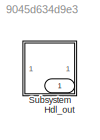
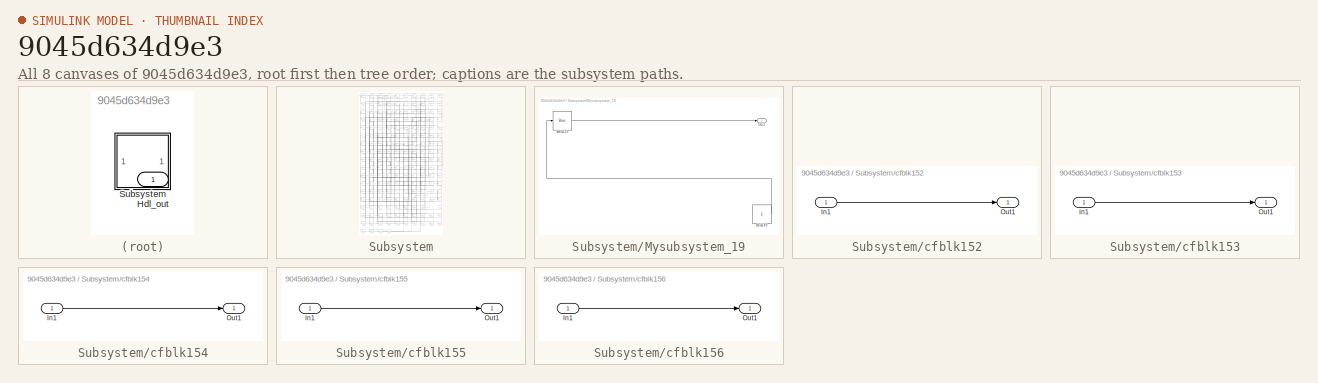
[diagram: thumbnail index - all 8 canvases of the model, root first then tree order]
MODEL slx_9045d634d9e3
KIND model
CONFIG AbsTol = auto
CONFIG EnableMultiTasking = off
CONFIG FixedStep = auto
CONFIG MaxStep = auto
CONFIG MinStep = auto
CONFIG RelTol = 1e-3
CONFIG SampleTimeConstraint = Unconstrained
CONFIG SolverName = VariableStepAuto
CONFIG StartTime = 0.0
CONFIG StopTime = 10.0
BLOCK [Outport] Hdl_out
  OutDataTypeStr = uint8
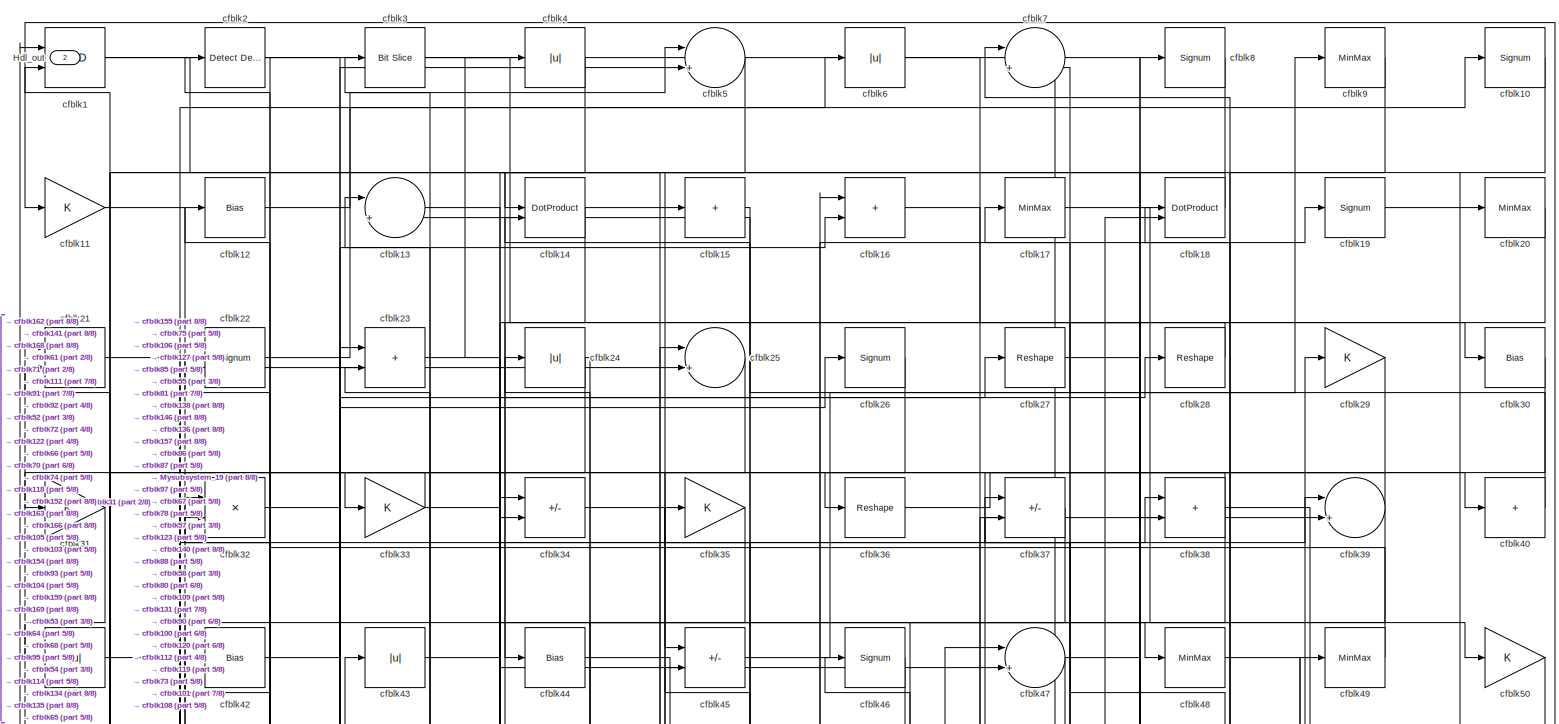
[diagram: Subsystem - part 1/8, full width, top band]
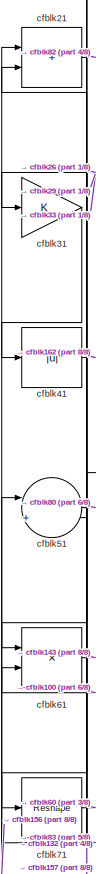
[diagram: Subsystem - part 2/8, top left region]
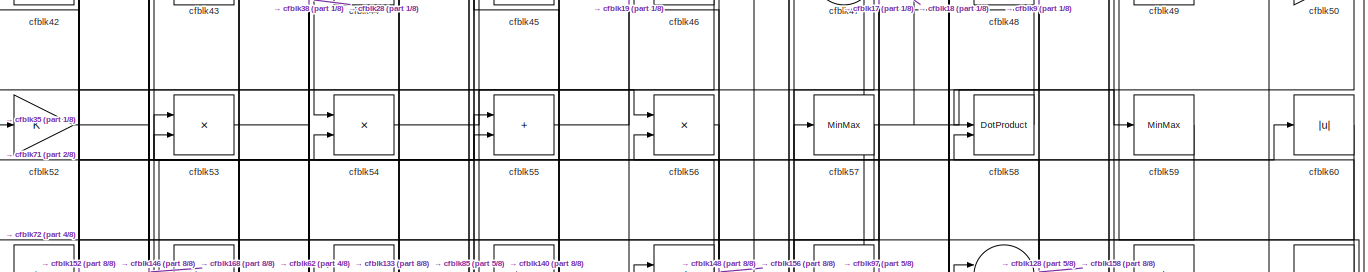
[diagram: Subsystem - part 3/8, full width, top band]
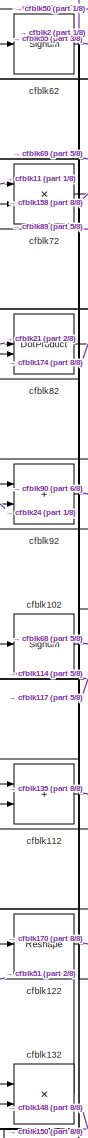
[diagram: Subsystem - part 4/8, middle left region]
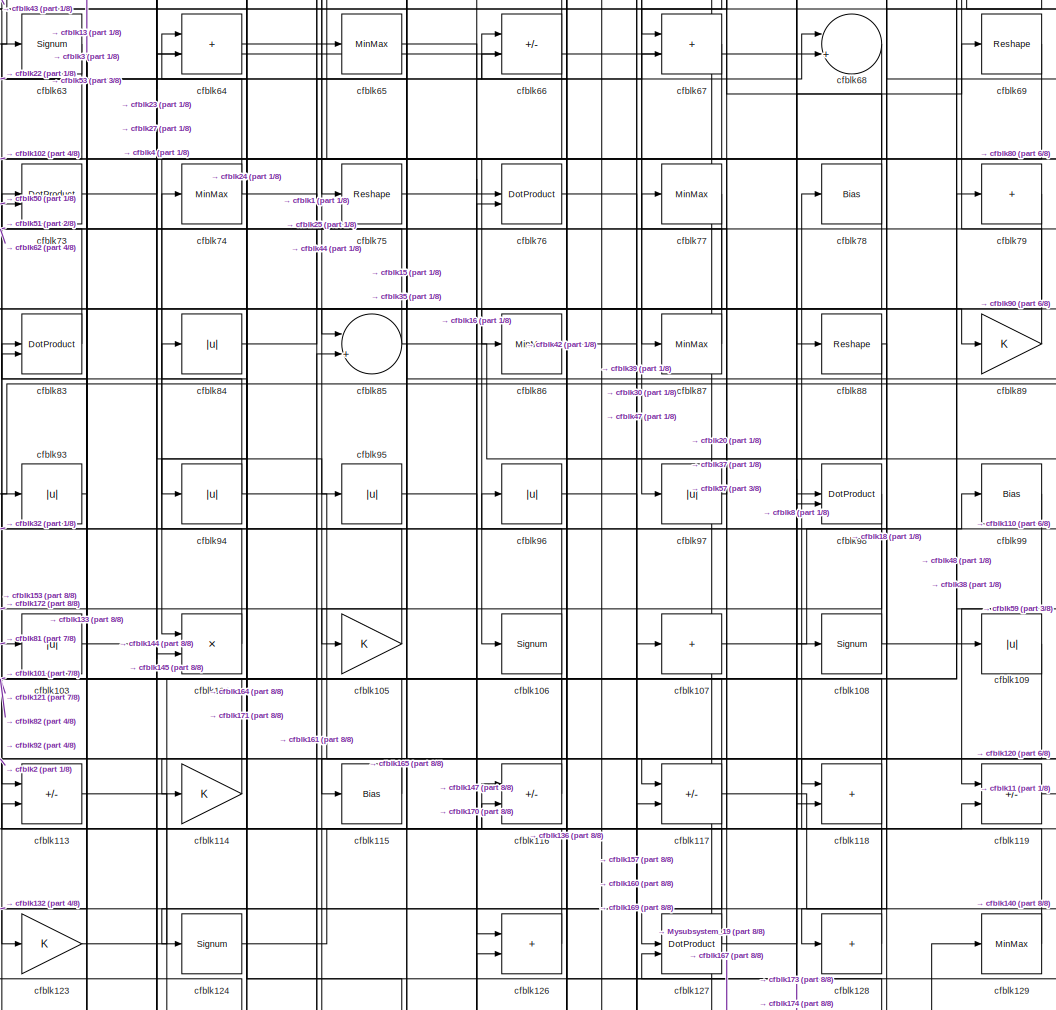
[diagram: Subsystem - part 5/8, central region]
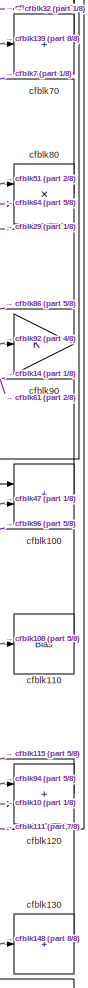
[diagram: Subsystem - part 6/8, middle right region]
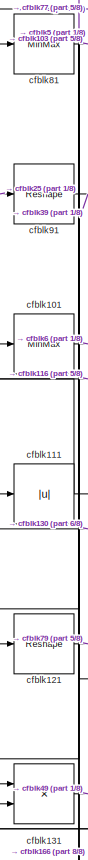
[diagram: Subsystem - part 7/8, middle left region]
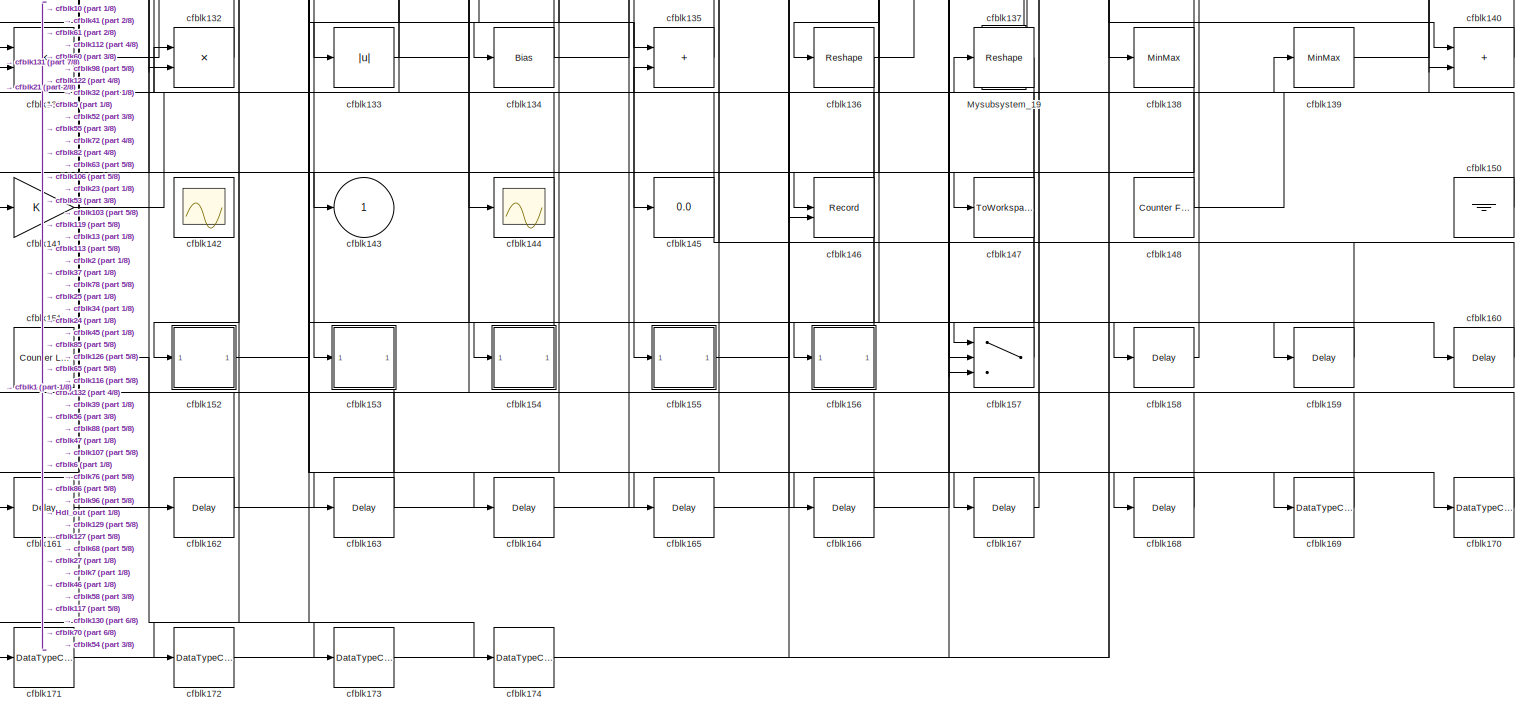
[diagram: Subsystem - part 8/8, full width, bottom band]
BLOCK [SubSystem] Subsystem
BLOCK [Outport] Subsystem/Hdl_out
  OutDataTypeStr = uint8
  Port = 2
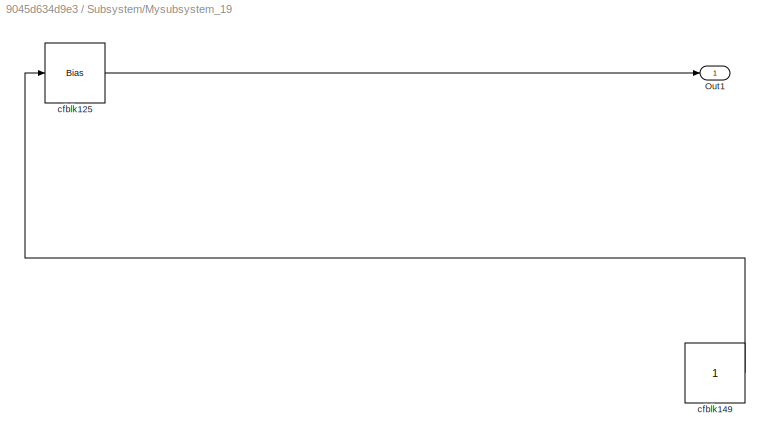
BLOCK [SubSystem] Subsystem/Mysubsystem_19
  RTWFcnName = Mysubsystem_19
  RTWFcnNameOpts = User specified
  RTWFileNameOpts = Use function name
  RTWSystemCode = Reusable function
  TreatAsAtomicUnit = on
BLOCK [Outport] Subsystem/Mysubsystem_19/Out1
BLOCK [Bias] Subsystem/Mysubsystem_19/cfblk125
  Bias = 0.0
  SaturateOnIntegerOverflow = off
BLOCK [Constant] Subsystem/Mysubsystem_19/cfblk149
  SampleTime = -1
BLOCK [Logic] Subsystem/cfblk1
  AllPortsSameDT = off
  OutDataTypeStr = boolean
BLOCK [Signum] Subsystem/cfblk10
BLOCK [Sum] Subsystem/cfblk100
  IconShape = rectangular
  OutDataTypeStr = uint8
BLOCK [MinMax] Subsystem/cfblk101
  OutDataTypeStr = uint8
BLOCK [Signum] Subsystem/cfblk102
BLOCK [Abs] Subsystem/cfblk103
  OutDataTypeStr = uint8
  SaturateOnIntegerOverflow = off
BLOCK [Product] Subsystem/cfblk104
  Inputs = */
  OutDataTypeStr = uint8
  RndMeth = Zero
  SaturateOnIntegerOverflow = on
BLOCK [Gain] Subsystem/cfblk105
  OutDataTypeStr = uint8
BLOCK [Signum] Subsystem/cfblk106
BLOCK [Sum] Subsystem/cfblk107
  IconShape = rectangular
  Inputs = +
  OutDataTypeStr = uint8
BLOCK [Signum] Subsystem/cfblk108
BLOCK [Abs] Subsystem/cfblk109
  OutDataTypeStr = uint8
  SaturateOnIntegerOverflow = off
BLOCK [Gain] Subsystem/cfblk11
  OutDataTypeStr = uint8
BLOCK [Bias] Subsystem/cfblk110
  Bias = 0.0
  SaturateOnIntegerOverflow = off
BLOCK [Abs] Subsystem/cfblk111
  OutDataTypeStr = uint8
  SaturateOnIntegerOverflow = off
BLOCK [Sum] Subsystem/cfblk112
  IconShape = rectangular
  OutDataTypeStr = uint8
BLOCK [Sum] Subsystem/cfblk113
  IconShape = rectangular
  Inputs = +-
  OutDataTypeStr = uint8
BLOCK [Gain] Subsystem/cfblk114
  OutDataTypeStr = uint8
BLOCK [Bias] Subsystem/cfblk115
  Bias = 0.0
  SaturateOnIntegerOverflow = off
BLOCK [Sum] Subsystem/cfblk116
  IconShape = rectangular
  Inputs = +-
  OutDataTypeStr = uint8
BLOCK [Sum] Subsystem/cfblk117
  IconShape = rectangular
  Inputs = +-
  OutDataTypeStr = uint8
BLOCK [Sum] Subsystem/cfblk118
  IconShape = rectangular
  OutDataTypeStr = uint8
BLOCK [Sum] Subsystem/cfblk119
  IconShape = rectangular
  Inputs = +-
  OutDataTypeStr = uint8
BLOCK [Bias] Subsystem/cfblk12
  Bias = 0.0
  SaturateOnIntegerOverflow = off
BLOCK [Sum] Subsystem/cfblk120
  IconShape = rectangular
  OutDataTypeStr = uint8
BLOCK [Reshape] Subsystem/cfblk121
BLOCK [Reshape] Subsystem/cfblk122
BLOCK [Gain] Subsystem/cfblk123
  OutDataTypeStr = uint8
BLOCK [Signum] Subsystem/cfblk124
BLOCK [Sum] Subsystem/cfblk126
  IconShape = rectangular
  OutDataTypeStr = uint8
BLOCK [DotProduct] Subsystem/cfblk127
  OutDataTypeStr = uint8
BLOCK [Sum] Subsystem/cfblk128
  IconShape = rectangular
  Inputs = +
  OutDataTypeStr = uint8
BLOCK [MinMax] Subsystem/cfblk129
  OutDataTypeStr = uint8
BLOCK [Sum] Subsystem/cfblk13
  Inputs = |++
  OutDataTypeStr = uint8
BLOCK [Sum] Subsystem/cfblk130
  IconShape = rectangular
  Inputs = +
  OutDataTypeStr = uint8
BLOCK [Product] Subsystem/cfblk131
  Inputs = */
  OutDataTypeStr = uint8
  RndMeth = Zero
  SaturateOnIntegerOverflow = on
BLOCK [Product] Subsystem/cfblk132
  Inputs = */
  OutDataTypeStr = uint8
  RndMeth = Zero
  SaturateOnIntegerOverflow = on
BLOCK [Abs] Subsystem/cfblk133
  OutDataTypeStr = uint8
  SaturateOnIntegerOverflow = off
BLOCK [Bias] Subsystem/cfblk134
  Bias = 0.0
  SaturateOnIntegerOverflow = off
BLOCK [Sum] Subsystem/cfblk135
  IconShape = rectangular
  OutDataTypeStr = uint8
BLOCK [Reshape] Subsystem/cfblk136
BLOCK [Reshape] Subsystem/cfblk137
BLOCK [MinMax] Subsystem/cfblk138
  OutDataTypeStr = uint8
BLOCK [MinMax] Subsystem/cfblk139
  OutDataTypeStr = uint8
BLOCK [DotProduct] Subsystem/cfblk14
  OutDataTypeStr = uint8
BLOCK [Sum] Subsystem/cfblk140
  IconShape = rectangular
  OutDataTypeStr = uint8
BLOCK [Gain] Subsystem/cfblk141
  OutDataTypeStr = uint8
BLOCK [Scope] Subsystem/cfblk142
  Floating = on
  NumInputPorts = 1
  ScopeSpecificationString = Simulink.scopes.TimeScopeBlockCfg('CurrentConfiguration', extmgr.ConfigurationSet(extmgr.Configuration('Core','General UI',true,'FigureColor',[0.156862745098039 0.156862745098039 0.156862745098039]),extmgr.Configuration('Core','Source UI',true),extmgr.Configuration('Sources','WiredSimulink',true,'DataLoggingVariableName','ScopeData1','DataLoggingSaveFormat','StructureWithTime','DataLoggingLimitDat...<+2713ch>
BLOCK [Outport] Subsystem/cfblk143
  OutDataTypeStr = uint8
  VectorParamsAs1DForOutWhenUnconnected = off
BLOCK [Scope] Subsystem/cfblk144
  Floating = off
  NumInputPorts = 1
  ScopeSpecificationString = Simulink.scopes.TimeScopeBlockCfg('CurrentConfiguration', extmgr.ConfigurationSet(extmgr.Configuration('Core','General UI',true),extmgr.Configuration('Core','Source UI',true),extmgr.Configuration('Sources','WiredSimulink',true,'DataLoggingSaveFormat','Array','DataLoggingLimitDataPoints',true,'DataLoggingDecimation','1'),extmgr.Configuration('Visuals','Time Domain',true,'DisplayPropertyDefaults',st...<+829ch>
BLOCK [Display] Subsystem/cfblk145
  Decimation = 1
BLOCK [Record] Subsystem/cfblk146
  CompatibilityTag = XY
  FileSettingsInternal = {"entries":[{"content":{"excelSettings":{"content":{},"type":"Streamout.ExcelSettings"}},"type":"Streamout.FileSettingStorage","uuid":""}],"packageUris":["http:\/\/schema.mathworks.com\/mf0\/streamout_blocks\/R2020a"],"version":"1.0"}
  Layout = [1 1]
  SignalsInternal = {"entries":[{"content":{"signals":[{"content":{"blockPath":[],"dimensions":[1],"domain":"","lineColor":"#a2142f","plots":[1],"port":1,"signalID":61803,"signalName":"cfblk39"},"type":"RecordBlkView.Signal","uuid":""},{"content":{"blockPath":[],"dimensions":[1],"domain":"","lineColor":"#139fff","plots":[1],"port":2,"signalID":61806,"signalName":"cfblk52"},"type":"RecordBlkView.Signal","uuid":""}]},"...<+142ch>
  VisualizationBindings = {"xyplotplugin":{"info":[{"series":[{"bindingParametersList":[{"parameter":"X-Axis","signalID":61803,"signalName":"cfblk39"},{"parameter":"Y-Axis","signalID":61806,"signalName":"cfblk52"}],"seriesID":35906}],"subplotID":1}]}}
  st = -1
BLOCK [ToWorkspace] Subsystem/cfblk147
  MaxDataPoints = inf
  SampleTime = -1
  SaveFormat = Timeseries
  VariableName = simout
BLOCK [Reference] Subsystem/cfblk148  REF=hdlsllib/Sources/Counter
Free-Running
  SourceBlock = hdlsllib/Sources/Counter\nFree-Running
  SourceType = Counter Free-Running
BLOCK [Sum] Subsystem/cfblk15
  IconShape = rectangular
  Inputs = +
  OutDataTypeStr = uint8
BLOCK [Ground] Subsystem/cfblk150
BLOCK [Reference] Subsystem/cfblk151  REF=hdlsllib/Sources/Counter
Limited
  SourceBlock = hdlsllib/Sources/Counter\nLimited
  SourceType = Counter Limited
BLOCK [SubSystem] Subsystem/cfblk152
  LibrarySourceBlock = hdlsllib/Ports &\nSubsystems/Subsystem
BLOCK [Inport] Subsystem/cfblk152/In1
BLOCK [Outport] Subsystem/cfblk152/Out1
BLOCK [SubSystem] Subsystem/cfblk153
  LibrarySourceBlock = hdlsllib/Ports &\nSubsystems/Subsystem
BLOCK [Inport] Subsystem/cfblk153/In1
BLOCK [Outport] Subsystem/cfblk153/Out1
BLOCK [SubSystem] Subsystem/cfblk154
  LibrarySourceBlock = hdlsllib/Ports &\nSubsystems/Subsystem
BLOCK [Inport] Subsystem/cfblk154/In1
BLOCK [Outport] Subsystem/cfblk154/Out1
BLOCK [SubSystem] Subsystem/cfblk155
  LibrarySourceBlock = hdlsllib/Ports &\nSubsystems/Subsystem
BLOCK [Inport] Subsystem/cfblk155/In1
BLOCK [Outport] Subsystem/cfblk155/Out1
BLOCK [SubSystem] Subsystem/cfblk156
  LibrarySourceBlock = hdlsllib/Ports &\nSubsystems/Subsystem
BLOCK [Inport] Subsystem/cfblk156/In1
BLOCK [Outport] Subsystem/cfblk156/Out1
BLOCK [Switch] Subsystem/cfblk157
  InputSameDT = off
  OutDataTypeStr = uint8
  SaturateOnIntegerOverflow = off
BLOCK [Delay] Subsystem/cfblk158
  InputPortMap = u0
  SampleTime = 1
BLOCK [Delay] Subsystem/cfblk159
  InputPortMap = u0
  SampleTime = 1
BLOCK [Sum] Subsystem/cfblk16
  IconShape = rectangular
  OutDataTypeStr = uint8
BLOCK [Delay] Subsystem/cfblk160
  InputPortMap = u0
  SampleTime = 1
BLOCK [Delay] Subsystem/cfblk161
  InputPortMap = u0
  SampleTime = 1
BLOCK [Delay] Subsystem/cfblk162
  InputPortMap = u0
  SampleTime = 1
BLOCK [Delay] Subsystem/cfblk163
  InputPortMap = u0
  SampleTime = 1
BLOCK [Delay] Subsystem/cfblk164
  InputPortMap = u0
  SampleTime = 1
BLOCK [Delay] Subsystem/cfblk165
  InputPortMap = u0
  SampleTime = 1
BLOCK [Delay] Subsystem/cfblk166
  InputPortMap = u0
  SampleTime = 1
BLOCK [Delay] Subsystem/cfblk167
  InputPortMap = u0
  SampleTime = 1
BLOCK [Delay] Subsystem/cfblk168
  InputPortMap = u0
  SampleTime = 1
BLOCK [DataTypeConversion] Subsystem/cfblk169
  OutDataTypeStr = uint8
  RndMeth = Floor
  SaturateOnIntegerOverflow = off
BLOCK [MinMax] Subsystem/cfblk17
  OutDataTypeStr = uint8
BLOCK [DataTypeConversion] Subsystem/cfblk170
  OutDataTypeStr = uint8
  RndMeth = Floor
  SaturateOnIntegerOverflow = off
BLOCK [DataTypeConversion] Subsystem/cfblk171
  OutDataTypeStr = uint8
  RndMeth = Floor
  SaturateOnIntegerOverflow = off
BLOCK [DataTypeConversion] Subsystem/cfblk172
  OutDataTypeStr = uint8
  RndMeth = Floor
  SaturateOnIntegerOverflow = off
BLOCK [DataTypeConversion] Subsystem/cfblk173
  OutDataTypeStr = uint8
  RndMeth = Floor
  SaturateOnIntegerOverflow = off
BLOCK [DataTypeConversion] Subsystem/cfblk174
  OutDataTypeStr = uint8
  RndMeth = Floor
  SaturateOnIntegerOverflow = off
BLOCK [DotProduct] Subsystem/cfblk18
  OutDataTypeStr = uint8
BLOCK [Signum] Subsystem/cfblk19
BLOCK [Reference] Subsystem/cfblk2  REF=simulink/Logic and Bit
Operations/Detect
Decrease
  LibrarySourceBlock = hdlsllib/Logic and Bit\nOperations/Detect\nDecrease
  SourceBlock = simulink/Logic and Bit\nOperations/Detect\nDecrease
  SourceType = Detect Decrease
BLOCK [MinMax] Subsystem/cfblk20
  OutDataTypeStr = uint8
BLOCK [Sum] Subsystem/cfblk21
  IconShape = rectangular
  OutDataTypeStr = uint8
BLOCK [Signum] Subsystem/cfblk22
BLOCK [Sum] Subsystem/cfblk23
  IconShape = rectangular
  OutDataTypeStr = uint8
BLOCK [Abs] Subsystem/cfblk24
  OutDataTypeStr = uint8
  SaturateOnIntegerOverflow = off
BLOCK [Sum] Subsystem/cfblk25
  Inputs = |++
  OutDataTypeStr = uint8
BLOCK [Signum] Subsystem/cfblk26
BLOCK [Reshape] Subsystem/cfblk27
BLOCK [Reshape] Subsystem/cfblk28
BLOCK [Gain] Subsystem/cfblk29
  OutDataTypeStr = uint8
BLOCK [Reference] Subsystem/cfblk3  REF=hdlsllib/Logic and Bit
Operations/Bit Slice
  SourceBlock = hdlsllib/Logic and Bit\nOperations/Bit Slice
  SourceType = Bit Slice
BLOCK [Bias] Subsystem/cfblk30
  Bias = 0.0
  SaturateOnIntegerOverflow = off
BLOCK [Gain] Subsystem/cfblk31
  OutDataTypeStr = uint8
BLOCK [Product] Subsystem/cfblk32
  Inputs = */
  OutDataTypeStr = uint8
  RndMeth = Zero
  SaturateOnIntegerOverflow = on
BLOCK [Gain] Subsystem/cfblk33
  OutDataTypeStr = uint8
BLOCK [Sum] Subsystem/cfblk34
  IconShape = rectangular
  Inputs = +-
  OutDataTypeStr = uint8
BLOCK [Gain] Subsystem/cfblk35
  OutDataTypeStr = uint8
BLOCK [Reshape] Subsystem/cfblk36
BLOCK [Sum] Subsystem/cfblk37
  IconShape = rectangular
  Inputs = +-
  OutDataTypeStr = uint8
BLOCK [Sum] Subsystem/cfblk38
  IconShape = rectangular
  OutDataTypeStr = uint8
BLOCK [Sum] Subsystem/cfblk39
  Inputs = |++
  OutDataTypeStr = uint8
BLOCK [Abs] Subsystem/cfblk4
  OutDataTypeStr = uint8
  SaturateOnIntegerOverflow = off
BLOCK [Sum] Subsystem/cfblk40
  IconShape = rectangular
  Inputs = +
  OutDataTypeStr = uint8
BLOCK [Abs] Subsystem/cfblk41
  OutDataTypeStr = uint8
  SaturateOnIntegerOverflow = off
BLOCK [Bias] Subsystem/cfblk42
  Bias = 0.0
  SaturateOnIntegerOverflow = off
BLOCK [Abs] Subsystem/cfblk43
  OutDataTypeStr = uint8
  SaturateOnIntegerOverflow = off
BLOCK [Bias] Subsystem/cfblk44
  Bias = 0.0
  SaturateOnIntegerOverflow = off
BLOCK [Sum] Subsystem/cfblk45
  IconShape = rectangular
  Inputs = +-
  OutDataTypeStr = uint8
BLOCK [Signum] Subsystem/cfblk46
BLOCK [Sum] Subsystem/cfblk47
  Inputs = |++
  OutDataTypeStr = uint8
BLOCK [MinMax] Subsystem/cfblk48
  OutDataTypeStr = uint8
BLOCK [MinMax] Subsystem/cfblk49
  OutDataTypeStr = uint8
BLOCK [Sum] Subsystem/cfblk5
  Inputs = |++
  OutDataTypeStr = uint8
BLOCK [Gain] Subsystem/cfblk50
  OutDataTypeStr = uint8
BLOCK [Sum] Subsystem/cfblk51
  Inputs = |++
  OutDataTypeStr = uint8
BLOCK [Gain] Subsystem/cfblk52
  OutDataTypeStr = uint8
BLOCK [Product] Subsystem/cfblk53
  Inputs = */
  OutDataTypeStr = uint8
  RndMeth = Zero
  SaturateOnIntegerOverflow = on
BLOCK [Product] Subsystem/cfblk54
  Inputs = */
  OutDataTypeStr = uint8
  RndMeth = Zero
  SaturateOnIntegerOverflow = on
BLOCK [Sum] Subsystem/cfblk55
  IconShape = rectangular
  OutDataTypeStr = uint8
BLOCK [Product] Subsystem/cfblk56
  Inputs = */
  OutDataTypeStr = uint8
  RndMeth = Zero
  SaturateOnIntegerOverflow = on
BLOCK [MinMax] Subsystem/cfblk57
  OutDataTypeStr = uint8
BLOCK [DotProduct] Subsystem/cfblk58
  OutDataTypeStr = uint8
BLOCK [MinMax] Subsystem/cfblk59
  OutDataTypeStr = uint8
BLOCK [Abs] Subsystem/cfblk6
  OutDataTypeStr = uint8
  SaturateOnIntegerOverflow = off
BLOCK [Abs] Subsystem/cfblk60
  OutDataTypeStr = uint8
  SaturateOnIntegerOverflow = off
BLOCK [Product] Subsystem/cfblk61
  Inputs = */
  OutDataTypeStr = uint8
  RndMeth = Zero
  SaturateOnIntegerOverflow = on
BLOCK [Signum] Subsystem/cfblk62
BLOCK [Signum] Subsystem/cfblk63
BLOCK [Sum] Subsystem/cfblk64
  IconShape = rectangular
  OutDataTypeStr = uint8
BLOCK [MinMax] Subsystem/cfblk65
  OutDataTypeStr = uint8
BLOCK [Sum] Subsystem/cfblk66
  IconShape = rectangular
  Inputs = +-
  OutDataTypeStr = uint8
BLOCK [Sum] Subsystem/cfblk67
  IconShape = rectangular
  OutDataTypeStr = uint8
BLOCK [Sum] Subsystem/cfblk68
  Inputs = |++
  OutDataTypeStr = uint8
BLOCK [Reshape] Subsystem/cfblk69
BLOCK [Sum] Subsystem/cfblk7
  Inputs = |++
  OutDataTypeStr = uint8
BLOCK [Sum] Subsystem/cfblk70
  IconShape = rectangular
  Inputs = +
  OutDataTypeStr = uint8
BLOCK [Reshape] Subsystem/cfblk71
BLOCK [Product] Subsystem/cfblk72
  Inputs = */
  OutDataTypeStr = uint8
  RndMeth = Zero
  SaturateOnIntegerOverflow = on
BLOCK [DotProduct] Subsystem/cfblk73
  OutDataTypeStr = uint8
BLOCK [MinMax] Subsystem/cfblk74
  OutDataTypeStr = uint8
BLOCK [Reshape] Subsystem/cfblk75
BLOCK [DotProduct] Subsystem/cfblk76
  OutDataTypeStr = uint8
BLOCK [MinMax] Subsystem/cfblk77
  OutDataTypeStr = uint8
BLOCK [Bias] Subsystem/cfblk78
  Bias = 0.0
  SaturateOnIntegerOverflow = off
BLOCK [Sum] Subsystem/cfblk79
  IconShape = rectangular
  Inputs = +
  OutDataTypeStr = uint8
BLOCK [Signum] Subsystem/cfblk8
BLOCK [Product] Subsystem/cfblk80
  Inputs = */
  OutDataTypeStr = uint8
  RndMeth = Zero
  SaturateOnIntegerOverflow = on
BLOCK [MinMax] Subsystem/cfblk81
  OutDataTypeStr = uint8
BLOCK [DotProduct] Subsystem/cfblk82
  OutDataTypeStr = uint8
BLOCK [DotProduct] Subsystem/cfblk83
  OutDataTypeStr = uint8
BLOCK [Abs] Subsystem/cfblk84
  OutDataTypeStr = uint8
  SaturateOnIntegerOverflow = off
BLOCK [Sum] Subsystem/cfblk85
  Inputs = |++
  OutDataTypeStr = uint8
BLOCK [MinMax] Subsystem/cfblk86
  OutDataTypeStr = uint8
BLOCK [MinMax] Subsystem/cfblk87
  OutDataTypeStr = uint8
BLOCK [Reshape] Subsystem/cfblk88
BLOCK [Gain] Subsystem/cfblk89
  OutDataTypeStr = uint8
BLOCK [MinMax] Subsystem/cfblk9
  OutDataTypeStr = uint8
BLOCK [Gain] Subsystem/cfblk90
  OutDataTypeStr = uint8
BLOCK [Reshape] Subsystem/cfblk91
BLOCK [Sum] Subsystem/cfblk92
  IconShape = rectangular
  OutDataTypeStr = uint8
BLOCK [Abs] Subsystem/cfblk93
  OutDataTypeStr = uint8
  SaturateOnIntegerOverflow = off
BLOCK [Abs] Subsystem/cfblk94
  OutDataTypeStr = uint8
  SaturateOnIntegerOverflow = off
BLOCK [Abs] Subsystem/cfblk95
  OutDataTypeStr = uint8
  SaturateOnIntegerOverflow = off
BLOCK [Abs] Subsystem/cfblk96
  OutDataTypeStr = uint8
  SaturateOnIntegerOverflow = off
BLOCK [Abs] Subsystem/cfblk97
  OutDataTypeStr = uint8
  SaturateOnIntegerOverflow = off
BLOCK [DotProduct] Subsystem/cfblk98
  OutDataTypeStr = uint8
BLOCK [Bias] Subsystem/cfblk99
  Bias = 0.0
  SaturateOnIntegerOverflow = off
LINE Subsystem/Mysubsystem_19/cfblk125:1 -> Subsystem/Mysubsystem_19/Out1:1
LINE Subsystem/Mysubsystem_19/cfblk149:1 -> Subsystem/Mysubsystem_19/cfblk125:1
NET Subsystem/Mysubsystem_19:1 -> Subsystem/Hdl_out:1, Subsystem/cfblk129:1
NET Subsystem/cfblk100:1 -> Subsystem/cfblk14:2, Subsystem/cfblk61:2
LINE Subsystem/cfblk101:1 -> Subsystem/cfblk6:1
LINE Subsystem/cfblk102:1 -> Subsystem/cfblk68:1
NET Subsystem/cfblk103:1 -> Subsystem/cfblk13:1, Subsystem/cfblk144:1
LINE Subsystem/cfblk104:1 -> Subsystem/cfblk74:1
LINE Subsystem/cfblk105:1 -> Subsystem/cfblk43:1
NET Subsystem/cfblk106:1 -> Subsystem/cfblk133:1, Subsystem/cfblk32:1
LINE Subsystem/cfblk107:1 -> Subsystem/cfblk99:1
NET Subsystem/cfblk108:1 -> Subsystem/cfblk110:1, Subsystem/cfblk18:1, Subsystem/cfblk64:1
LINE Subsystem/cfblk109:1 -> Subsystem/cfblk117:1
NET Subsystem/cfblk10:1 -> Subsystem/cfblk120:2, Subsystem/cfblk141:1
LINE Subsystem/cfblk110:1 -> Subsystem/cfblk96:1
NET Subsystem/cfblk111:1 -> Subsystem/cfblk25:2, Subsystem/cfblk91:1
LINE Subsystem/cfblk112:1 -> Subsystem/cfblk135:1
LINE Subsystem/cfblk113:1 -> Subsystem/cfblk145:1
LINE Subsystem/cfblk114:1 -> Subsystem/cfblk92:1
LINE Subsystem/cfblk115:1 -> Subsystem/cfblk83:1
LINE Subsystem/cfblk116:1 -> Subsystem/cfblk101:1
NET Subsystem/cfblk117:1 -> Subsystem/cfblk127:1, Subsystem/cfblk132:2, Subsystem/cfblk140:2, Subsystem/cfblk82:2
NET Subsystem/cfblk118:1 -> Subsystem/cfblk124:1, Subsystem/cfblk83:2
LINE Subsystem/cfblk119:1 -> Subsystem/cfblk11:1
LINE Subsystem/cfblk11:1 -> Subsystem/cfblk72:1
LINE Subsystem/cfblk120:1 -> Subsystem/cfblk115:1
LINE Subsystem/cfblk121:1 -> Subsystem/cfblk79:1
LINE Subsystem/cfblk122:1 -> Subsystem/cfblk170:1
LINE Subsystem/cfblk123:1 -> Subsystem/cfblk8:1
LINE Subsystem/cfblk124:1 -> Subsystem/cfblk116:1
NET Subsystem/cfblk126:1 -> Subsystem/cfblk113:2, Subsystem/cfblk84:1
NET Subsystem/cfblk127:1 -> Subsystem/cfblk35:1, Subsystem/cfblk69:1, Subsystem/cfblk93:1
LINE Subsystem/cfblk128:1 -> Subsystem/cfblk78:1
NET Subsystem/cfblk129:1 -> Subsystem/cfblk66:2, Subsystem/cfblk77:1
LINE Subsystem/cfblk12:1 -> Subsystem/cfblk10:1
LINE Subsystem/cfblk130:1 -> Subsystem/cfblk111:1
LINE Subsystem/cfblk131:1 -> Subsystem/cfblk49:1
LINE Subsystem/cfblk132:1 -> Subsystem/cfblk51:2
NET Subsystem/cfblk133:1 -> Subsystem/cfblk119:2, Subsystem/cfblk53:1
NET Subsystem/cfblk134:1 -> Subsystem/cfblk25:1, Subsystem/cfblk2:1
LINE Subsystem/cfblk135:1 -> Subsystem/cfblk24:1
NET Subsystem/cfblk136:1 -> Subsystem/cfblk116:2, Subsystem/cfblk154:1, Subsystem/cfblk47:1
LINE Subsystem/cfblk137:1 -> Subsystem/cfblk157:1
NET Subsystem/cfblk138:1 -> Subsystem/cfblk161:1, Subsystem/cfblk46:1
LINE Subsystem/cfblk139:1 -> Subsystem/cfblk70:1
LINE Subsystem/cfblk13:1 -> Subsystem/cfblk159:1
LINE Subsystem/cfblk140:1 -> Subsystem/cfblk54:2
LINE Subsystem/cfblk141:1 -> Subsystem/cfblk139:1
NET Subsystem/cfblk148:1 -> Subsystem/cfblk130:1, Subsystem/cfblk132:1, Subsystem/cfblk56:2
NET Subsystem/cfblk14:1 -> Subsystem/cfblk34:2, Subsystem/cfblk45:1
LINE Subsystem/cfblk150:1 -> Subsystem/cfblk112:2
LINE Subsystem/cfblk151:1 -> Subsystem/cfblk173:1
LINE Subsystem/cfblk152/In1:1 -> Subsystem/cfblk152/Out1:1
NET Subsystem/cfblk152:1 -> Subsystem/cfblk55:2, Subsystem/cfblk5:2
LINE Subsystem/cfblk153/In1:1 -> Subsystem/cfblk153/Out1:1
LINE Subsystem/cfblk153:1 -> Subsystem/cfblk163:1
LINE Subsystem/cfblk154/In1:1 -> Subsystem/cfblk154/Out1:1
LINE Subsystem/cfblk154:1 -> Subsystem/cfblk23:2
LINE Subsystem/cfblk155/In1:1 -> Subsystem/cfblk155/Out1:1
LINE Subsystem/cfblk155:1 -> Subsystem/cfblk137:1
LINE Subsystem/cfblk156/In1:1 -> Subsystem/cfblk156/Out1:1
LINE Subsystem/cfblk156:1 -> Subsystem/cfblk21:1
LINE Subsystem/cfblk157:1 -> Subsystem/cfblk21:2
LINE Subsystem/cfblk158:1 -> Subsystem/cfblk58:2
LINE Subsystem/cfblk159:1 -> Subsystem/cfblk45:2
LINE Subsystem/cfblk15:1 -> Subsystem/cfblk85:1
LINE Subsystem/cfblk160:1 -> Subsystem/cfblk135:2
LINE Subsystem/cfblk161:1 -> Subsystem/cfblk85:2
LINE Subsystem/cfblk162:1 -> Subsystem/cfblk1:1
LINE Subsystem/cfblk163:1 -> Subsystem/cfblk23:1
LINE Subsystem/cfblk164:1 -> Subsystem/cfblk126:2
LINE Subsystem/cfblk165:1 -> Subsystem/cfblk117:2
LINE Subsystem/cfblk166:1 -> Subsystem/cfblk131:2
LINE Subsystem/cfblk167:1 -> Subsystem/cfblk127:2
LINE Subsystem/cfblk168:1 -> Subsystem/cfblk1:2
LINE Subsystem/cfblk169:1 -> Subsystem/cfblk34:1
LINE Subsystem/cfblk16:1 -> Subsystem/cfblk30:1
LINE Subsystem/cfblk170:1 -> Subsystem/cfblk76:1
LINE Subsystem/cfblk171:1 -> Subsystem/cfblk76:2
LINE Subsystem/cfblk172:1 -> Subsystem/cfblk107:1
LINE Subsystem/cfblk173:1 -> Subsystem/cfblk98:1
LINE Subsystem/cfblk174:1 -> Subsystem/cfblk98:2
LINE Subsystem/cfblk17:1 -> Subsystem/cfblk50:1
LINE Subsystem/cfblk18:1 -> Subsystem/cfblk14:1
LINE Subsystem/cfblk19:1 -> Subsystem/cfblk20:1
LINE Subsystem/cfblk1:1 -> Subsystem/cfblk65:1
LINE Subsystem/cfblk20:1 -> Subsystem/cfblk67:1
LINE Subsystem/cfblk21:1 -> Subsystem/cfblk82:1
LINE Subsystem/cfblk22:1 -> Subsystem/cfblk5:1
NET Subsystem/cfblk23:1 -> Subsystem/cfblk4:1, Subsystem/cfblk68:2, Subsystem/cfblk95:1
NET Subsystem/cfblk24:1 -> Subsystem/cfblk114:1, Subsystem/cfblk92:2
LINE Subsystem/cfblk25:1 -> Subsystem/cfblk75:1
LINE Subsystem/cfblk26:1 -> Subsystem/cfblk71:1
LINE Subsystem/cfblk27:1 -> Subsystem/cfblk138:1
LINE Subsystem/cfblk28:1 -> Subsystem/cfblk54:1
LINE Subsystem/cfblk29:1 -> Subsystem/cfblk61:1
NET Subsystem/cfblk2:1 -> Subsystem/cfblk118:2, Subsystem/cfblk122:1
LINE Subsystem/cfblk30:1 -> Subsystem/cfblk87:1
LINE Subsystem/cfblk31:1 -> Subsystem/cfblk41:1
LINE Subsystem/cfblk32:1 -> Subsystem/cfblk166:1
NET Subsystem/cfblk33:1 -> Subsystem/cfblk31:1, Subsystem/cfblk47:2
LINE Subsystem/cfblk34:1 -> Subsystem/cfblk155:1
LINE Subsystem/cfblk35:1 -> Subsystem/cfblk52:1
LINE Subsystem/cfblk36:1 -> Subsystem/cfblk40:1
LINE Subsystem/cfblk37:1 -> Subsystem/cfblk134:1
NET Subsystem/cfblk38:1 -> Subsystem/cfblk100:1, Subsystem/cfblk33:1, Subsystem/cfblk64:2
NET Subsystem/cfblk39:1 -> Subsystem/cfblk146:1, Subsystem/cfblk36:1
LINE Subsystem/cfblk3:1 -> Subsystem/cfblk88:1
NET Subsystem/cfblk40:1 -> Subsystem/cfblk13:2, Subsystem/cfblk7:2
LINE Subsystem/cfblk41:1 -> Subsystem/cfblk162:1
NET Subsystem/cfblk42:1 -> Subsystem/cfblk16:2, Subsystem/cfblk26:1
LINE Subsystem/cfblk43:1 -> Subsystem/cfblk48:1
LINE Subsystem/cfblk44:1 -> Subsystem/cfblk106:1
LINE Subsystem/cfblk45:1 -> Subsystem/cfblk9:1
LINE Subsystem/cfblk46:1 -> Subsystem/cfblk81:1
NET Subsystem/cfblk47:1 -> Subsystem/cfblk100:2, Subsystem/cfblk97:1
LINE Subsystem/cfblk48:1 -> Subsystem/cfblk109:1
LINE Subsystem/cfblk49:1 -> Subsystem/cfblk12:1
NET Subsystem/cfblk4:1 -> Subsystem/cfblk104:2, Subsystem/cfblk44:1
NET Subsystem/cfblk50:1 -> Subsystem/cfblk112:1, Subsystem/cfblk73:2
LINE Subsystem/cfblk51:1 -> Subsystem/cfblk80:1
NET Subsystem/cfblk52:1 -> Subsystem/cfblk146:2, Subsystem/cfblk168:1, Subsystem/cfblk28:1
LINE Subsystem/cfblk53:1 -> Subsystem/cfblk38:1
LINE Subsystem/cfblk54:1 -> Subsystem/cfblk56:1
LINE Subsystem/cfblk55:1 -> Subsystem/cfblk19:1
LINE Subsystem/cfblk56:1 -> Subsystem/cfblk156:1
NET Subsystem/cfblk57:1 -> Subsystem/cfblk18:2, Subsystem/cfblk59:1, Subsystem/cfblk72:2
LINE Subsystem/cfblk58:1 -> Subsystem/cfblk17:1
LINE Subsystem/cfblk59:1 -> Subsystem/cfblk128:1
LINE Subsystem/cfblk5:1 -> Subsystem/cfblk131:1
LINE Subsystem/cfblk60:1 -> Subsystem/cfblk152:1
LINE Subsystem/cfblk61:1 -> Subsystem/cfblk143:1
LINE Subsystem/cfblk62:1 -> Subsystem/cfblk55:1
LINE Subsystem/cfblk63:1 -> Subsystem/cfblk153:1
LINE Subsystem/cfblk64:1 -> Subsystem/cfblk80:2
NET Subsystem/cfblk65:1 -> Subsystem/cfblk105:1, Subsystem/cfblk147:1
NET Subsystem/cfblk66:1 -> Subsystem/cfblk123:1, Subsystem/cfblk42:1
LINE Subsystem/cfblk67:1 -> Subsystem/cfblk94:1
NET Subsystem/cfblk68:1 -> Subsystem/cfblk104:1, Subsystem/cfblk167:1
LINE Subsystem/cfblk69:1 -> Subsystem/cfblk102:1
LINE Subsystem/cfblk6:1 -> Subsystem/cfblk157:2
LINE Subsystem/cfblk70:1 -> Subsystem/cfblk32:2
LINE Subsystem/cfblk71:1 -> Subsystem/cfblk60:1
LINE Subsystem/cfblk72:1 -> Subsystem/cfblk158:1
LINE Subsystem/cfblk73:1 -> Subsystem/cfblk27:1
NET Subsystem/cfblk74:1 -> Subsystem/cfblk22:1, Subsystem/cfblk89:1
NET Subsystem/cfblk75:1 -> Subsystem/cfblk16:1, Subsystem/cfblk67:2
LINE Subsystem/cfblk76:1 -> Subsystem/cfblk169:1
LINE Subsystem/cfblk77:1 -> Subsystem/cfblk121:1
NET Subsystem/cfblk78:1 -> Subsystem/cfblk164:1, Subsystem/cfblk171:1, Subsystem/cfblk37:2
LINE Subsystem/cfblk79:1 -> Subsystem/cfblk113:1
LINE Subsystem/cfblk7:1 -> Subsystem/cfblk140:1
LINE Subsystem/cfblk80:1 -> Subsystem/cfblk7:1
LINE Subsystem/cfblk81:1 -> Subsystem/cfblk103:1
LINE Subsystem/cfblk82:1 -> Subsystem/cfblk174:1
LINE Subsystem/cfblk83:1 -> Subsystem/cfblk51:1
LINE Subsystem/cfblk84:1 -> Subsystem/cfblk66:1
NET Subsystem/cfblk85:1 -> Subsystem/cfblk108:1, Subsystem/cfblk165:1, Subsystem/cfblk53:2
NET Subsystem/cfblk86:1 -> Subsystem/cfblk160:1, Subsystem/cfblk39:2
LINE Subsystem/cfblk87:1 -> Subsystem/cfblk73:1
NET Subsystem/cfblk88:1 -> Subsystem/cfblk118:1, Subsystem/cfblk136:1
LINE Subsystem/cfblk89:1 -> Subsystem/cfblk62:1
NET Subsystem/cfblk8:1 -> Subsystem/cfblk15:1, Subsystem/cfblk38:2
NET Subsystem/cfblk90:1 -> Subsystem/cfblk29:1, Subsystem/cfblk86:1
LINE Subsystem/cfblk91:1 -> Subsystem/cfblk39:1
LINE Subsystem/cfblk92:1 -> Subsystem/cfblk90:1
LINE Subsystem/cfblk93:1 -> Subsystem/cfblk3:1
NET Subsystem/cfblk94:1 -> Subsystem/cfblk120:1, Subsystem/cfblk63:1
LINE Subsystem/cfblk95:1 -> Subsystem/cfblk126:1
LINE Subsystem/cfblk96:1 -> Subsystem/cfblk157:3
NET Subsystem/cfblk97:1 -> Subsystem/cfblk37:1, Subsystem/cfblk57:1
LINE Subsystem/cfblk98:1 -> Subsystem/cfblk172:1
LINE Subsystem/cfblk99:1 -> Subsystem/cfblk119:1
LINE Subsystem/cfblk9:1 -> Subsystem/cfblk58:1
LINE Subsystem:1 -> Hdl_out:1
note: NET lines group one-source signal fan-out (src -> all destinations, sorted); 1:1 wires keep LINE
